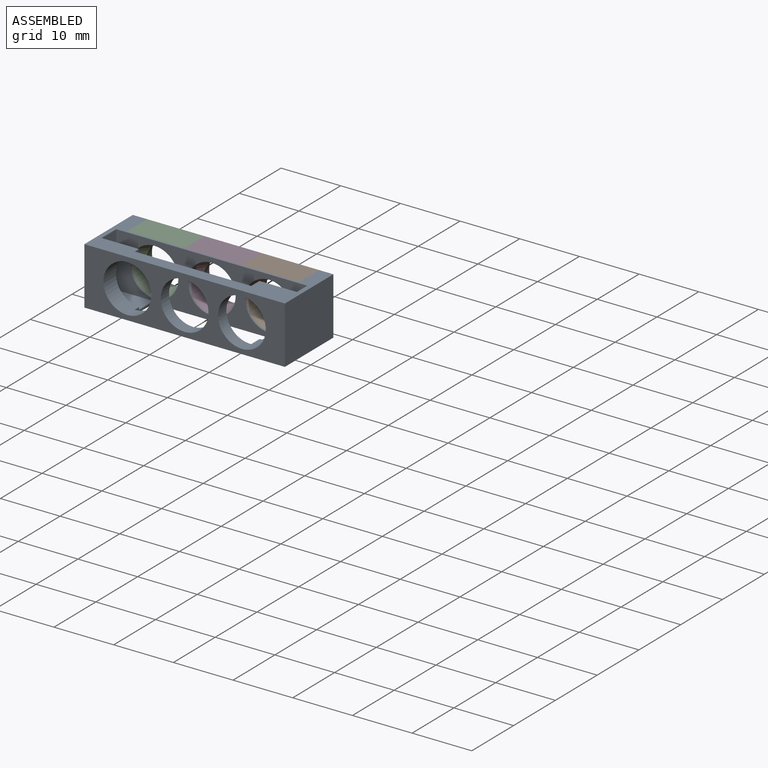
[diagram: assembled view]
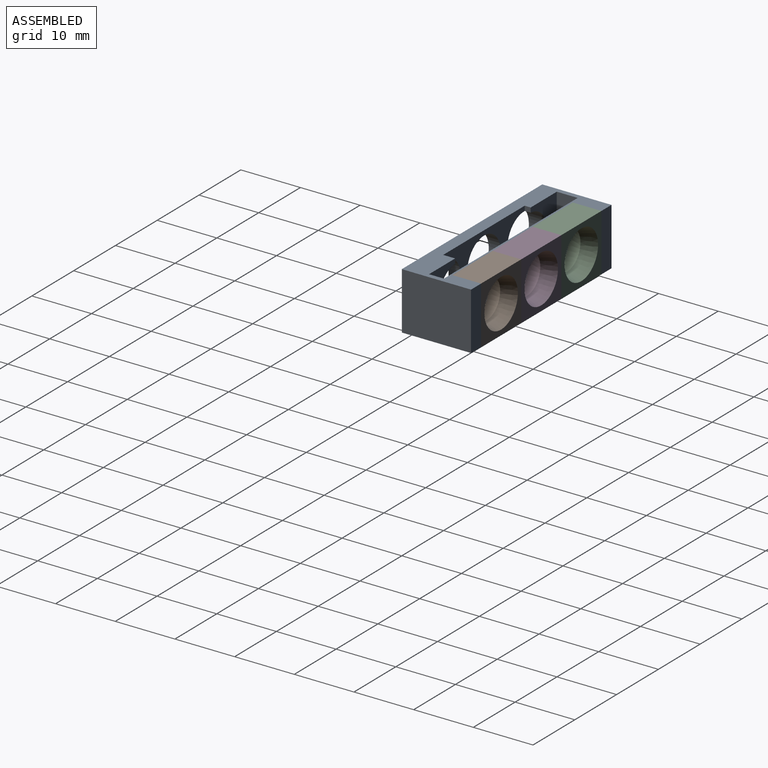
[diagram: assembled view, second angle]
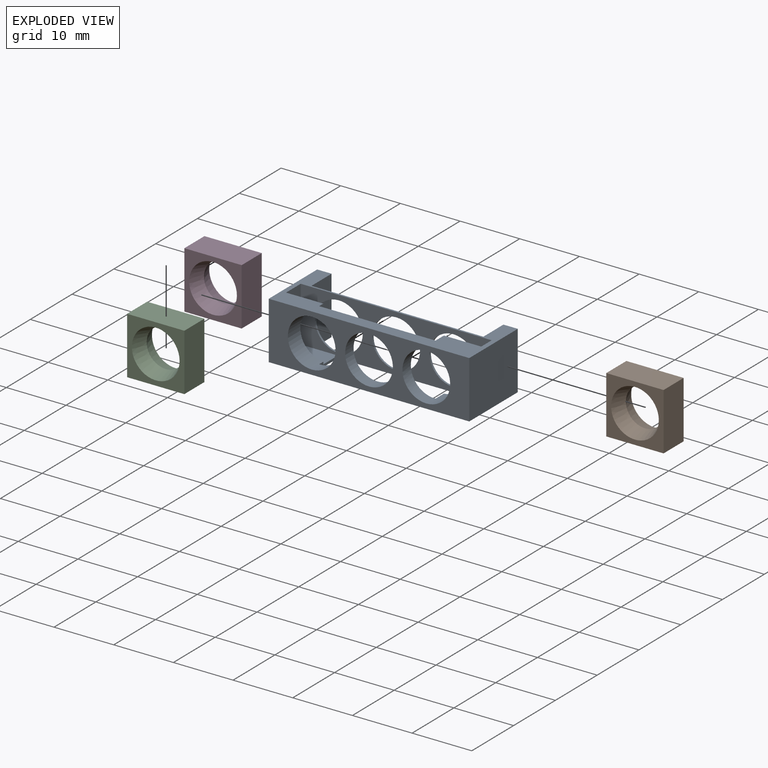
[diagram: exploded view]
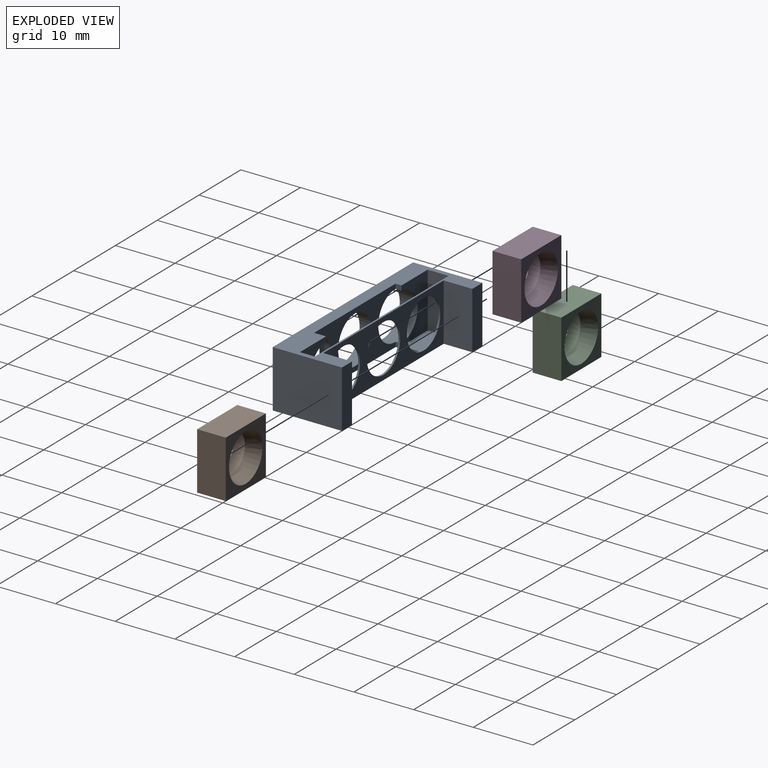
[diagram: exploded view, second angle]
ASSEMBLY  parts=4 mates=3
PART A: 28 faces, bbox 33.6x11.6x9.6 mm
  f0: plane 4.5x0.8mm, normal (-1,0,0), area 2.6mm2, adj f2,f4,f6,f20,f21,f27
  f1: plane 4.5x0.8mm, normal (1,0,0), area 2.2mm2, adj f2,f6,f8,f19,f20,f25
  f2: plane 32x9.6mm, normal (0,-1,0), area 151.4mm2, adj f0,f1,f3,f17,f18,f19,f20,f21
  f3: plane 9.2x2.5mm, normal (-1,0,0), area 23mm2, adj f2,f4,f18,f21
  f4: plane 9.2x6.25mm, normal (0,1,0), area 33.6mm2, adj f0,f3,f5,f18,f21,f27
  f5: plane 2x0.8mm, normal (-1,0,0), area 1.6mm2, adj f4,f6,f18,f27
  f6: plane 19.5x9.6mm, normal (0,1,0), area 84.3mm2, adj f0,f1,f5,f7,f18,f20,f25,f26
  f7: plane 1x0.8mm, normal (1,0,0), area 0.8mm2, adj f6,f8,f18,f25
  f8: plane 9.2x6.25mm, normal (0,1,0), area 33.6mm2, adj f1,f7,f17,f18,f19,f25
  f9: plane 11.6x9.6mm, normal (-1,0,0), area 111.4mm2, adj f10,f16,f18,f20
  f10: plane 33.6x9.6mm, normal (0,-1,0), area 171.8mm2, adj f9,f11,f18,f20,f25,f26,f27
  f11: plane 11.6x9.6mm, normal (1,0,0), area 111.4mm2, adj f10,f12,f18,f20
  f12: plane 9.6x2.4mm, normal (0,1,0), area 23mm2, adj f11,f13,f18,f20
  f13: plane 9.6x4.8mm, normal (-1,0,0), area 46.1mm2, adj f12,f14,f18,f20
  f14: plane 28.8x9.6mm, normal (0,1,0), area 125.7mm2, adj f13,f15,f18,f20,f22,f23,f24
  f15: plane 9.6x4.8mm, normal (1,0,0), area 46.1mm2, adj f14,f16,f18,f20
  f16: plane 9.6x2.4mm, normal (0,1,0), area 23mm2, adj f9,f15,f18,f20
  f17: plane 9.2x3.5mm, normal (1,0,0), area 32.2mm2, adj f2,f8,f18,f19
  f18: plane 33.6x11.6mm, normal (0,0,1), area 126.3mm2, adj f2,f3,f4,f5,f6,f7,f8,f9
  f19: plane 6.25x3.5mm, normal (0,0,1), area 21.9mm2, adj f1,f2,f8,f17
  f20: plane 33.6x11.6mm, normal (0,0,-1), area 163.8mm2, adj f0,f1,f2,f6,f9,f10,f11,f12
  f21: plane 6.25x2.5mm, normal (0,0,1), area 15.6mm2, adj f0,f2,f3,f4
  f22: cylinder r=4mm len=8mm, axis (0,1,0), area 7.5mm2, adj f2,f14
  f23: cylinder r=4mm len=8mm, axis (0,1,0), area 7.5mm2, adj f2,f14
  f24: cylinder r=4mm len=8mm, axis (0,1,0), area 7.5mm2, adj f2,f14
  f25: cylinder r=4mm len=8mm, axis (0,1,0), area 62.5mm2, adj f1,f6,f7,f8,f10
  f26: cylinder r=4mm len=8mm, axis (0,1,0), area 50.3mm2, adj f6,f10
  f27: cylinder r=4mm len=8mm, axis (0,1,0), area 74.8mm2, adj f0,f4,f5,f6,f10
PART B: 8 faces, bbox 9.6x9.6x4.8 mm
  f0: plane 9.6x9.6mm, normal (0,0,1), area 41.9mm2, adj f2,f4,f5,f6,f7
  f1: plane 9.6x9.6mm, normal (0,0,-1), area 41.9mm2, adj f3,f4,f5,f6,f7
  f2: cone r=3.2mm half-angle=18.4deg, axis (0,0,1), area 57.2mm2, adj f0,f3
  f3: cone r=4mm half-angle=18.4deg, axis (0,0,-1), area 57.2mm2, adj f1,f2
  f4: plane 9.6x4.8mm, normal (0,1,0), area 46.1mm2, adj f0,f1,f5,f6
  f5: plane 9.6x4.8mm, normal (1,0,0), area 46.1mm2, adj f0,f1,f4,f7
  f6: plane 9.6x4.8mm, normal (-1,0,0), area 46.1mm2, adj f0,f1,f4,f7
  f7: plane 9.6x4.8mm, normal (0,-1,0), area 46.1mm2, adj f0,f1,f5,f6
PART C: same geometry as B
PART D: same geometry as B
PLACE A t=(-3.27,-0.27,-1.15)mm
PLACE B rot(axis=(1,0,0),90deg) t=(6.33,6.08,-12.75)mm
PLACE C rot(axis=(1,0,0),90deg) t=(-12.87,6.08,-12.75)mm
PLACE D rot(axis=(1,0,0),90deg) t=(-3.27,6.08,-12.75)mm
MATE fastened D.f6 <-> C.f5  axis (-1,0,0) through (-8.07,3.68,3.25)mm
MATE fastened C.f6 <-> A.f15  axis (-1,0,0) through (-17.67,3.68,3.25)mm
MATE fastened B.f6 <-> D.f5  axis (-1,0,0) through (1.53,3.68,3.25)mm
